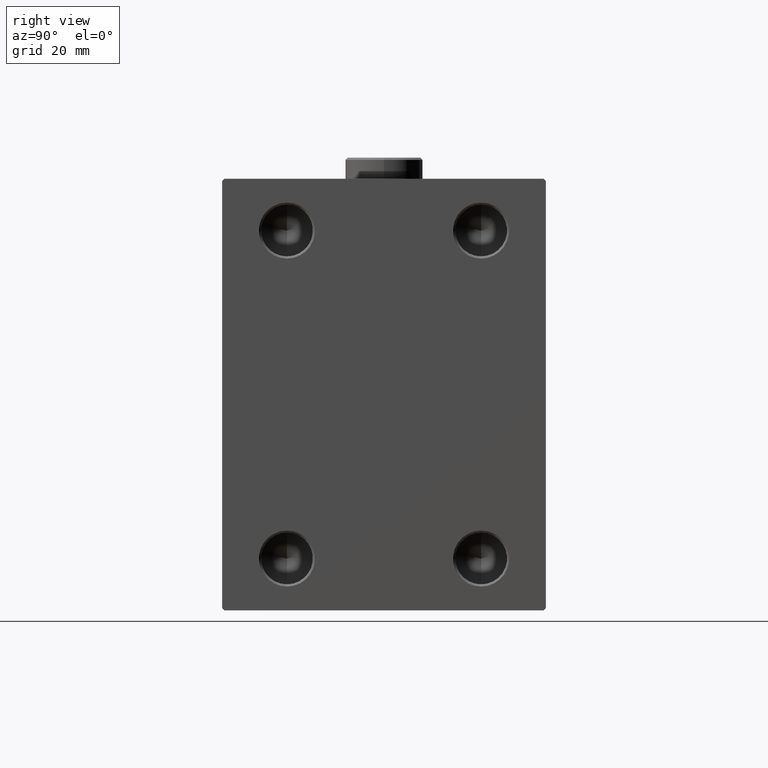
[diagram: clean part render]
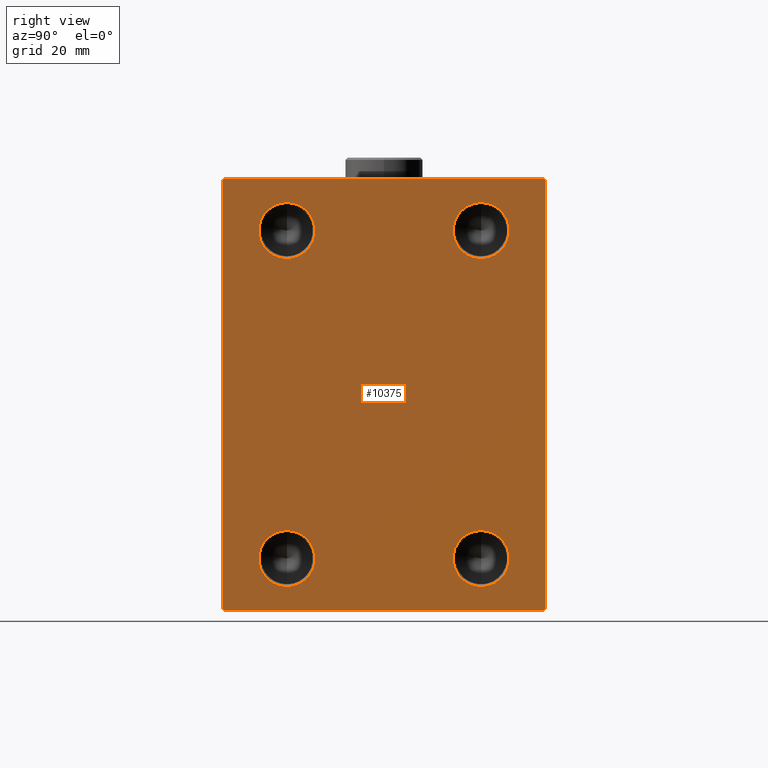
[diagram: same view with one face highlighted and labeled with its STEP entity id]
A machine part, right view. The second image highlights one B-rep face of the part: STEP entity #10375.
In plain terms, the highlighted planar face has unit normal (1, 0, 0).
Its self-contained STEP definition (entity closure, byte-faithful):
#478 = DIRECTION ( 'NONE',  ( 0.000000000000000000, 0.000000000000000000, -1.000000000000000000 ) ) ;
#568 = DIRECTION ( 'NONE',  ( 0.000000000000000000, -1.387778780781445676E-16, 1.000000000000000000 ) ) ;
#922 = AXIS2_PLACEMENT_3D ( 'NONE', #4556, #11712, #32294 ) ;
#963 = AXIS2_PLACEMENT_3D ( 'NONE', #21571, #28734, #11163 ) ;
#1197 = CARTESIAN_POINT ( 'NONE',  ( 98.00000000000000000, -43.49999999999972999, 43.50000000000034106 ) ) ;
#2175 = VERTEX_POINT ( 'NONE', #5434 ) ;
#3589 = ORIENTED_EDGE ( 'NONE', *, *, #24288, .F. ) ;
#3733 = CIRCLE ( 'NONE', #39925, 6.499999999999992006 ) ;
#3764 = CARTESIAN_POINT ( 'NONE',  ( 98.00000000000000000, 37.49999999999999289, 50.00000000000000711 ) ) ;
#4556 = CARTESIAN_POINT ( 'NONE',  ( 98.00000000000000000, -22.50000000000000000, -38.00000000000000711 ) ) ;
#4655 = DIRECTION ( 'NONE',  ( 0.000000000000000000, -0.7071067811865525687, -0.7071067811865425767 ) ) ;
#4828 = EDGE_CURVE ( 'NONE', #2175, #28657, #17946, .T. ) ;
#4833 = EDGE_CURVE ( 'NONE', #41024, #13925, #29020, .T. ) ;
#4869 = VECTOR ( 'NONE', #18181, 1000.000000000000000 ) ;
#4893 = CARTESIAN_POINT ( 'NONE',  ( 98.00000000000000000, -22.50000000000000000, -31.50000000000001421 ) ) ;
#4896 = DIRECTION ( 'NONE',  ( 0.000000000000000000, 0.000000000000000000, -1.000000000000000000 ) ) ;
#5141 = EDGE_LOOP ( 'NONE', ( #26484, #13205, #43019, #8818, #33120, #23822, #18158, #41399 ) ) ;
#5147 = VERTEX_POINT ( 'NONE', #5907 ) ;
#5418 = DIRECTION ( 'NONE',  ( 0.000000000000000000, 0.000000000000000000, -1.000000000000000000 ) ) ;
#5434 = CARTESIAN_POINT ( 'NONE',  ( 98.00000000000000000, -37.50000000000000000, 49.49999999999998579 ) ) ;
#5715 = EDGE_LOOP ( 'NONE', ( #3589, #44753 ) ) ;
#5879 = DIRECTION ( 'NONE',  ( 1.000000000000000000, -0.000000000000000000, -0.000000000000000000 ) ) ;
#5907 = CARTESIAN_POINT ( 'NONE',  ( 98.00000000000000000, 37.00000000000000711, 50.00000000000000711 ) ) ;
#6582 = CARTESIAN_POINT ( 'NONE',  ( 98.00000000000000000, -43.50000000000000711, -43.50000000000000711 ) ) ;
#6607 = EDGE_LOOP ( 'NONE', ( #14997, #40249 ) ) ;
#7186 = DIRECTION ( 'NONE',  ( 0.000000000000000000, 0.000000000000000000, -1.000000000000000000 ) ) ;
#7862 = CARTESIAN_POINT ( 'NONE',  ( 98.00000000000000000, -22.50000000000000000, 37.99999999999999289 ) ) ;
#7896 = DIRECTION ( 'NONE',  ( 0.000000000000000000, -1.000000000000000000, -2.775557561562891844E-16 ) ) ;
#8109 = CARTESIAN_POINT ( 'NONE',  ( 98.00000000000000000, 0.000000000000000000, 0.000000000000000000 ) ) ;
#8704 = AXIS2_PLACEMENT_3D ( 'NONE', #17594, #45320, #478 ) ;
#8818 = ORIENTED_EDGE ( 'NONE', *, *, #33731, .T. ) ;
#9816 = VECTOR ( 'NONE', #7896, 1000.000000000000000 ) ;
#10375 = ADVANCED_FACE ( 'NONE', ( #29612, #43711, #15043, #36790, #19225 ), #15740, .T. ) ;
#11163 = DIRECTION ( 'NONE',  ( 0.000000000000000000, 0.000000000000000000, -1.000000000000000000 ) ) ;
#11712 = DIRECTION ( 'NONE',  ( 1.000000000000000000, -0.000000000000000000, -0.000000000000000000 ) ) ;
#12015 = EDGE_CURVE ( 'NONE', #13925, #12979, #32927, .T. ) ;
#12030 = DIRECTION ( 'NONE',  ( 1.000000000000000000, -0.000000000000000000, -0.000000000000000000 ) ) ;
#12110 = CARTESIAN_POINT ( 'NONE',  ( 98.00000000000000000, 22.50000000000000000, 37.99999999999999289 ) ) ;
#12628 = ORIENTED_EDGE ( 'NONE', *, *, #28853, .F. ) ;
#12979 = VERTEX_POINT ( 'NONE', #19476 ) ;
#13205 = ORIENTED_EDGE ( 'NONE', *, *, #40256, .T. ) ;
#13925 = VERTEX_POINT ( 'NONE', #19954 ) ;
#14234 = CARTESIAN_POINT ( 'NONE',  ( 98.00000000000000000, -37.50000000000000000, 49.99999999999998579 ) ) ;
#14795 = CARTESIAN_POINT ( 'NONE',  ( 98.00000000000000000, -22.50000000000000000, 37.99999999999999289 ) ) ;
#14997 = ORIENTED_EDGE ( 'NONE', *, *, #18650, .F. ) ;
#15043 = FACE_BOUND ( 'NONE', #5715, .T. ) ;
#15451 = CARTESIAN_POINT ( 'NONE',  ( 98.00000000000000000, -36.99999999999999289, 49.99999999999998579 ) ) ;
#15740 = PLANE ( 'NONE',  #43255 ) ;
#15793 = AXIS2_PLACEMENT_3D ( 'NONE', #14795, #17607, #7186 ) ;
#17284 = CIRCLE ( 'NONE', #27634, 6.499999999999992006 ) ;
#17565 = CARTESIAN_POINT ( 'NONE',  ( 98.00000000000000000, 43.49999999999974420, 43.50000000000035527 ) ) ;
#17594 = CARTESIAN_POINT ( 'NONE',  ( 98.00000000000000000, -22.50000000000000000, -38.00000000000000711 ) ) ;
#17607 = DIRECTION ( 'NONE',  ( 1.000000000000000000, -0.000000000000000000, -0.000000000000000000 ) ) ;
#17785 = LINE ( 'NONE', #17565, #39611 ) ;
#17946 = LINE ( 'NONE', #14234, #4869 ) ;
#18075 = EDGE_CURVE ( 'NONE', #39512, #19463, #20596, .T. ) ;
#18158 = ORIENTED_EDGE ( 'NONE', *, *, #12015, .T. ) ;
#18181 = DIRECTION ( 'NONE',  ( 0.000000000000000000, 0.000000000000000000, -1.000000000000000000 ) ) ;
#18548 = VERTEX_POINT ( 'NONE', #4893 ) ;
#18650 = EDGE_CURVE ( 'NONE', #19463, #39512, #3733, .T. ) ;
#19225 = FACE_OUTER_BOUND ( 'NONE', #5141, .T. ) ;
#19269 = VERTEX_POINT ( 'NONE', #32980 ) ;
#19463 = VERTEX_POINT ( 'NONE', #27399 ) ;
#19476 = CARTESIAN_POINT ( 'NONE',  ( 98.00000000000000000, 37.49999999999999289, 49.50000000000002842 ) ) ;
#19954 = CARTESIAN_POINT ( 'NONE',  ( 98.00000000000000000, 37.50000000000000711, -49.50000000000001421 ) ) ;
#20130 = CARTESIAN_POINT ( 'NONE',  ( 98.00000000000000000, 22.50000000000000000, -38.00000000000000711 ) ) ;
#20596 = CIRCLE ( 'NONE', #963, 6.499999999999992006 ) ;
#20604 = CARTESIAN_POINT ( 'NONE',  ( 98.00000000000000000, 22.50000000000000000, 37.99999999999999289 ) ) ;
#20616 = LINE ( 'NONE', #42499, #21270 ) ;
#20802 = DIRECTION ( 'NONE',  ( 0.000000000000000000, 0.000000000000000000, -1.000000000000000000 ) ) ;
#21270 = VECTOR ( 'NONE', #32089, 1000.000000000000000 ) ;
#21285 = DIRECTION ( 'NONE',  ( 1.000000000000000000, -0.000000000000000000, -0.000000000000000000 ) ) ;
#21571 = CARTESIAN_POINT ( 'NONE',  ( 98.00000000000000000, 22.50000000000000000, -38.00000000000000711 ) ) ;
#21695 = AXIS2_PLACEMENT_3D ( 'NONE', #12110, #5879, #5418 ) ;
#22634 = AXIS2_PLACEMENT_3D ( 'NONE', #7862, #12030, #40240 ) ;
#23376 = VERTEX_POINT ( 'NONE', #15451 ) ;
#23565 = VERTEX_POINT ( 'NONE', #45342 ) ;
#23822 = ORIENTED_EDGE ( 'NONE', *, *, #4833, .T. ) ;
#24151 = LINE ( 'NONE', #6582, #43138 ) ;
#24288 = EDGE_CURVE ( 'NONE', #18548, #26143, #40786, .T. ) ;
#24461 = CARTESIAN_POINT ( 'NONE',  ( 98.00000000000000000, 37.00000000000001421, -50.00000000000000000 ) ) ;
#24622 = EDGE_LOOP ( 'NONE', ( #45535, #28789 ) ) ;
#24806 = EDGE_CURVE ( 'NONE', #5147, #23376, #39337, .T. ) ;
#24896 = CARTESIAN_POINT ( 'NONE',  ( 98.00000000000000000, -22.50000000000000000, 31.50000000000000000 ) ) ;
#25726 = CARTESIAN_POINT ( 'NONE',  ( 98.00000000000000000, -37.00000000000000000, -50.00000000000000000 ) ) ;
#26143 = VERTEX_POINT ( 'NONE', #41364 ) ;
#26484 = ORIENTED_EDGE ( 'NONE', *, *, #24806, .T. ) ;
#26833 = DIRECTION ( 'NONE',  ( 1.000000000000000000, -0.000000000000000000, -0.000000000000000000 ) ) ;
#27093 = VECTOR ( 'NONE', #4655, 999.9999999999998863 ) ;
#27399 = CARTESIAN_POINT ( 'NONE',  ( 98.00000000000000000, 22.50000000000000000, -31.50000000000001421 ) ) ;
#27601 = CARTESIAN_POINT ( 'NONE',  ( 98.00000000000000000, -22.50000000000000000, 44.49999999999998579 ) ) ;
#27634 = AXIS2_PLACEMENT_3D ( 'NONE', #20604, #21285, #35380 ) ;
#27773 = EDGE_CURVE ( 'NONE', #19269, #23565, #37942, .T. ) ;
#28184 = DIRECTION ( 'NONE',  ( -0.000000000000000000, -0.7071067811865525687, 0.7071067811865425767 ) ) ;
#28343 = DIRECTION ( 'NONE',  ( -0.000000000000000000, 0.7071067811865524577, 0.7071067811865426878 ) ) ;
#28657 = VERTEX_POINT ( 'NONE', #31516 ) ;
#28734 = DIRECTION ( 'NONE',  ( 1.000000000000000000, -0.000000000000000000, -0.000000000000000000 ) ) ;
#28789 = ORIENTED_EDGE ( 'NONE', *, *, #38431, .F. ) ;
#28853 = EDGE_CURVE ( 'NONE', #23565, #19269, #17284, .T. ) ;
#29020 = LINE ( 'NONE', #32278, #40200 ) ;
#29612 = FACE_BOUND ( 'NONE', #41904, .T. ) ;
#29855 = VERTEX_POINT ( 'NONE', #27601 ) ;
#31516 = CARTESIAN_POINT ( 'NONE',  ( 98.00000000000000000, -37.50000000000000000, -49.49999999999997158 ) ) ;
#31612 = VERTEX_POINT ( 'NONE', #24896 ) ;
#32089 = DIRECTION ( 'NONE',  ( 0.000000000000000000, 1.000000000000000000, 0.000000000000000000 ) ) ;
#32102 = CARTESIAN_POINT ( 'NONE',  ( 98.00000000000000000, 22.50000000000000000, -44.50000000000000000 ) ) ;
#32278 = CARTESIAN_POINT ( 'NONE',  ( 98.00000000000000000, 43.49999999999974420, -43.50000000000034817 ) ) ;
#32294 = DIRECTION ( 'NONE',  ( 0.000000000000000000, 0.000000000000000000, -1.000000000000000000 ) ) ;
#32304 = VERTEX_POINT ( 'NONE', #25726 ) ;
#32656 = EDGE_CURVE ( 'NONE', #29855, #31612, #42380, .T. ) ;
#32860 = LINE ( 'NONE', #1197, #27093 ) ;
#32927 = LINE ( 'NONE', #39620, #45501 ) ;
#32980 = CARTESIAN_POINT ( 'NONE',  ( 98.00000000000000000, 22.50000000000000000, 31.50000000000000000 ) ) ;
#33120 = ORIENTED_EDGE ( 'NONE', *, *, #42742, .T. ) ;
#33548 = DIRECTION ( 'NONE',  ( 1.000000000000000000, 0.000000000000000000, 0.000000000000000000 ) ) ;
#33731 = EDGE_CURVE ( 'NONE', #28657, #32304, #24151, .T. ) ;
#35380 = DIRECTION ( 'NONE',  ( 0.000000000000000000, 0.000000000000000000, -1.000000000000000000 ) ) ;
#36661 = CIRCLE ( 'NONE', #22634, 6.499999999999992006 ) ;
#36790 = FACE_BOUND ( 'NONE', #6607, .T. ) ;
#36867 = ORIENTED_EDGE ( 'NONE', *, *, #27773, .F. ) ;
#37942 = CIRCLE ( 'NONE', #21695, 6.499999999999992006 ) ;
#38431 = EDGE_CURVE ( 'NONE', #31612, #29855, #36661, .T. ) ;
#39337 = LINE ( 'NONE', #3764, #9816 ) ;
#39454 = EDGE_CURVE ( 'NONE', #12979, #5147, #17785, .T. ) ;
#39512 = VERTEX_POINT ( 'NONE', #32102 ) ;
#39611 = VECTOR ( 'NONE', #28184, 999.9999999999998863 ) ;
#39620 = CARTESIAN_POINT ( 'NONE',  ( 98.00000000000000000, 37.50000000000000711, -50.00000000000000000 ) ) ;
#39925 = AXIS2_PLACEMENT_3D ( 'NONE', #20130, #26833, #20802 ) ;
#40200 = VECTOR ( 'NONE', #28343, 1000.000000000000000 ) ;
#40240 = DIRECTION ( 'NONE',  ( 0.000000000000000000, 0.000000000000000000, -1.000000000000000000 ) ) ;
#40249 = ORIENTED_EDGE ( 'NONE', *, *, #18075, .F. ) ;
#40256 = EDGE_CURVE ( 'NONE', #23376, #2175, #32860, .T. ) ;
#40786 = CIRCLE ( 'NONE', #922, 6.499999999999992006 ) ;
#41024 = VERTEX_POINT ( 'NONE', #24461 ) ;
#41364 = CARTESIAN_POINT ( 'NONE',  ( 98.00000000000000000, -22.50000000000000000, -44.50000000000000000 ) ) ;
#41399 = ORIENTED_EDGE ( 'NONE', *, *, #39454, .T. ) ;
#41607 = EDGE_CURVE ( 'NONE', #26143, #18548, #45580, .T. ) ;
#41904 = EDGE_LOOP ( 'NONE', ( #12628, #36867 ) ) ;
#42380 = CIRCLE ( 'NONE', #15793, 6.499999999999992006 ) ;
#42383 = DIRECTION ( 'NONE',  ( -0.000000000000000000, 0.7071067811865474617, -0.7071067811865474617 ) ) ;
#42499 = CARTESIAN_POINT ( 'NONE',  ( 98.00000000000000000, -37.50000000000000000, -50.00000000000000000 ) ) ;
#42742 = EDGE_CURVE ( 'NONE', #32304, #41024, #20616, .T. ) ;
#43019 = ORIENTED_EDGE ( 'NONE', *, *, #4828, .T. ) ;
#43138 = VECTOR ( 'NONE', #42383, 1000.000000000000114 ) ;
#43255 = AXIS2_PLACEMENT_3D ( 'NONE', #8109, #33548, #4896 ) ;
#43711 = FACE_BOUND ( 'NONE', #24622, .T. ) ;
#44753 = ORIENTED_EDGE ( 'NONE', *, *, #41607, .F. ) ;
#45320 = DIRECTION ( 'NONE',  ( 1.000000000000000000, -0.000000000000000000, -0.000000000000000000 ) ) ;
#45342 = CARTESIAN_POINT ( 'NONE',  ( 98.00000000000000000, 22.50000000000000000, 44.49999999999998579 ) ) ;
#45501 = VECTOR ( 'NONE', #568, 1000.000000000000000 ) ;
#45535 = ORIENTED_EDGE ( 'NONE', *, *, #32656, .F. ) ;
#45580 = CIRCLE ( 'NONE', #8704, 6.499999999999992006 ) ;